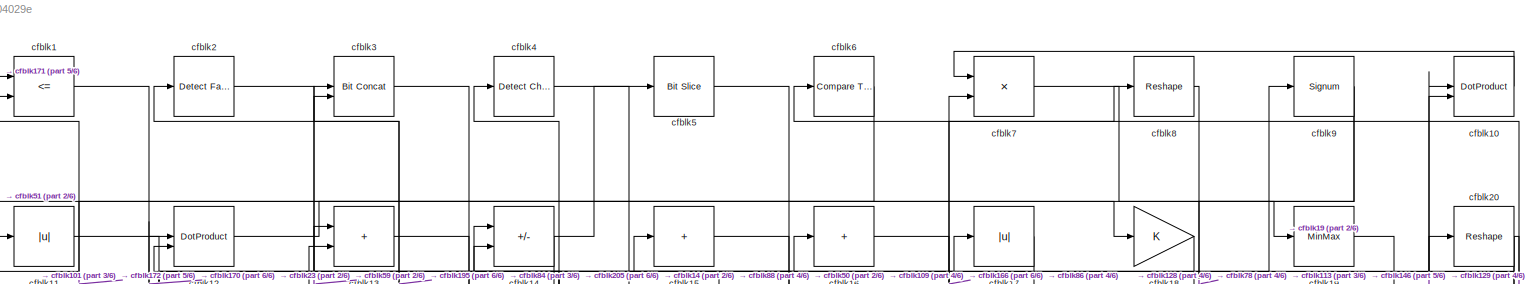
[diagram: root canvas - part 1/6, full width, top band]
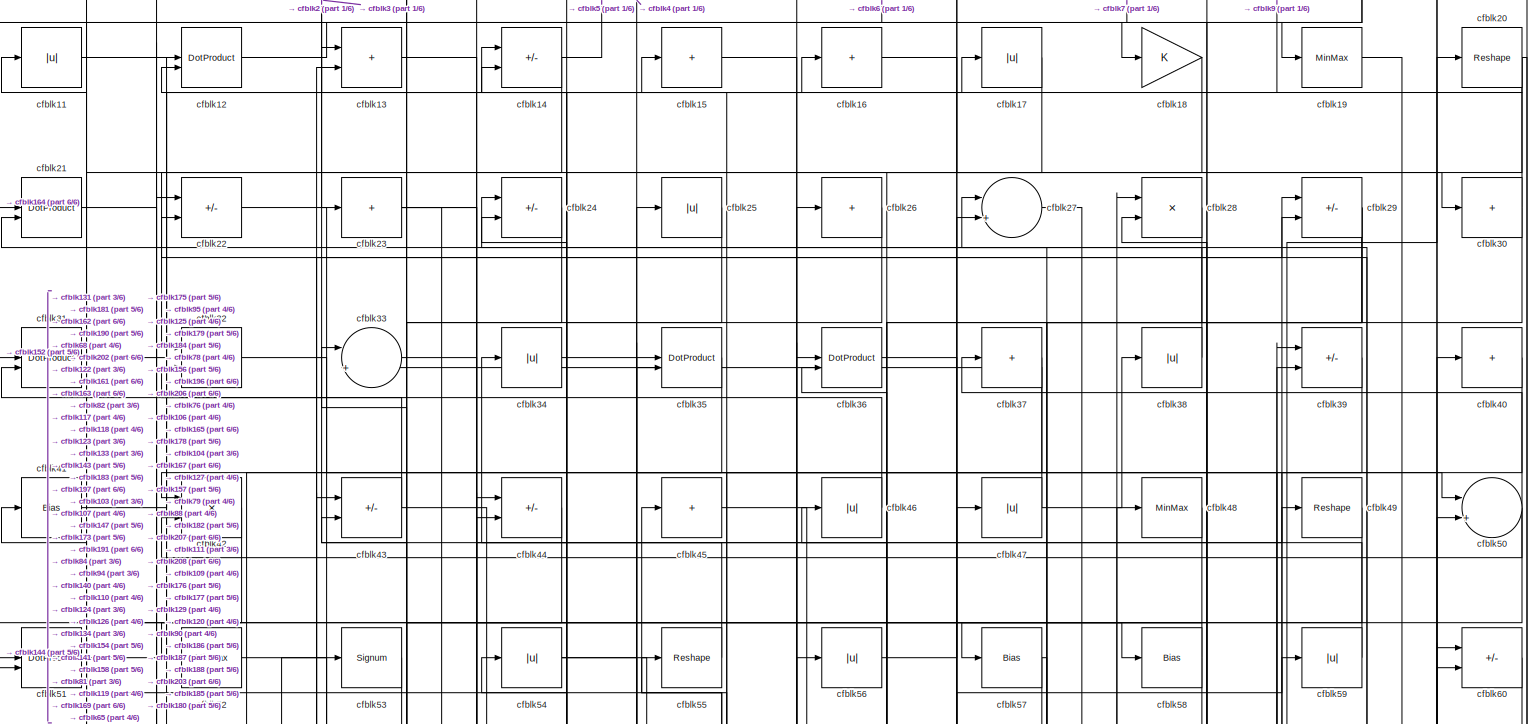
[diagram: root canvas - part 2/6, full width, top band]
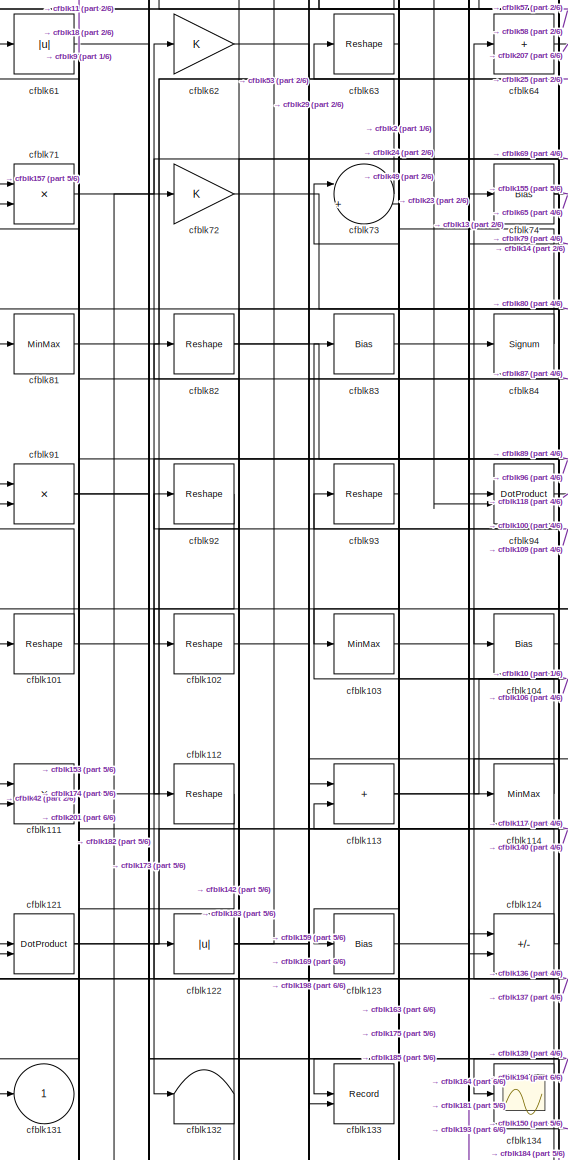
[diagram: root canvas - part 3/6, middle left region]
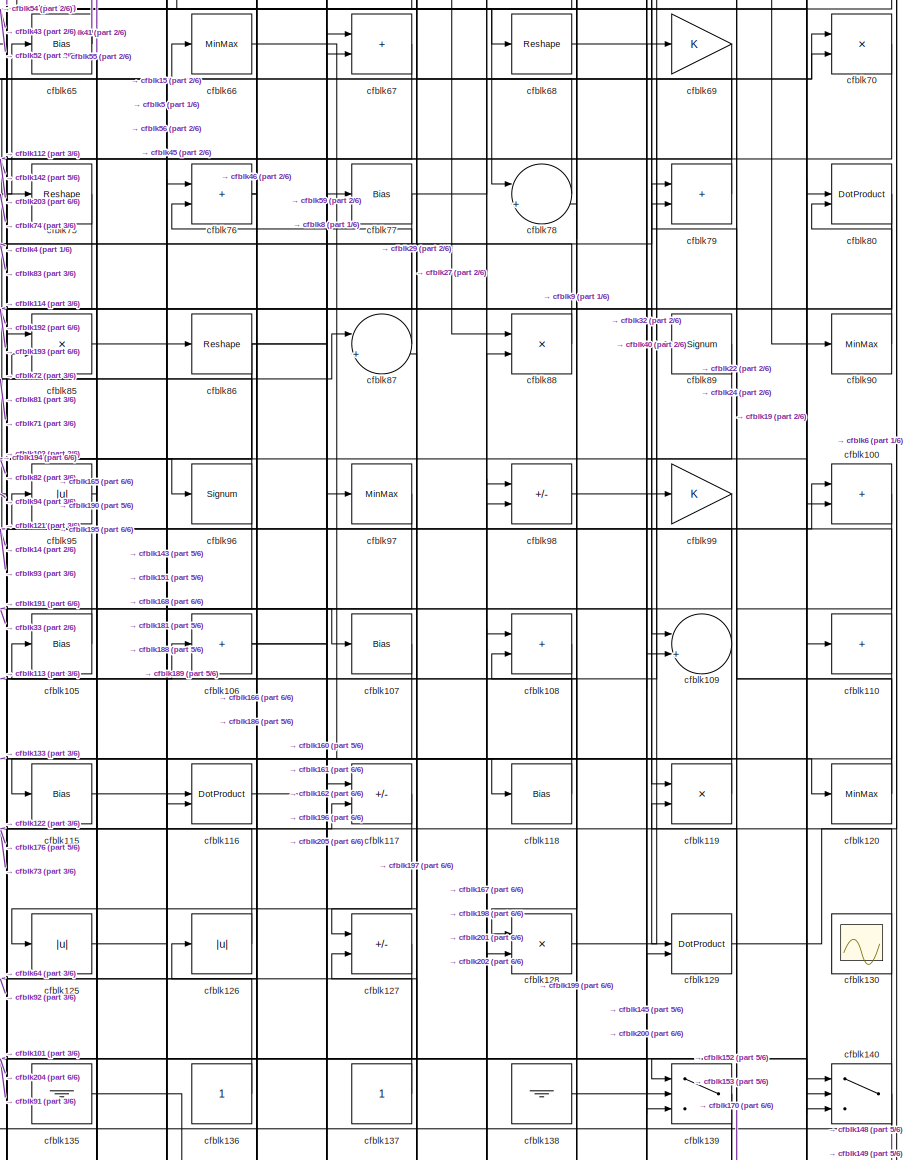
[diagram: root canvas - part 4/6, middle right region]
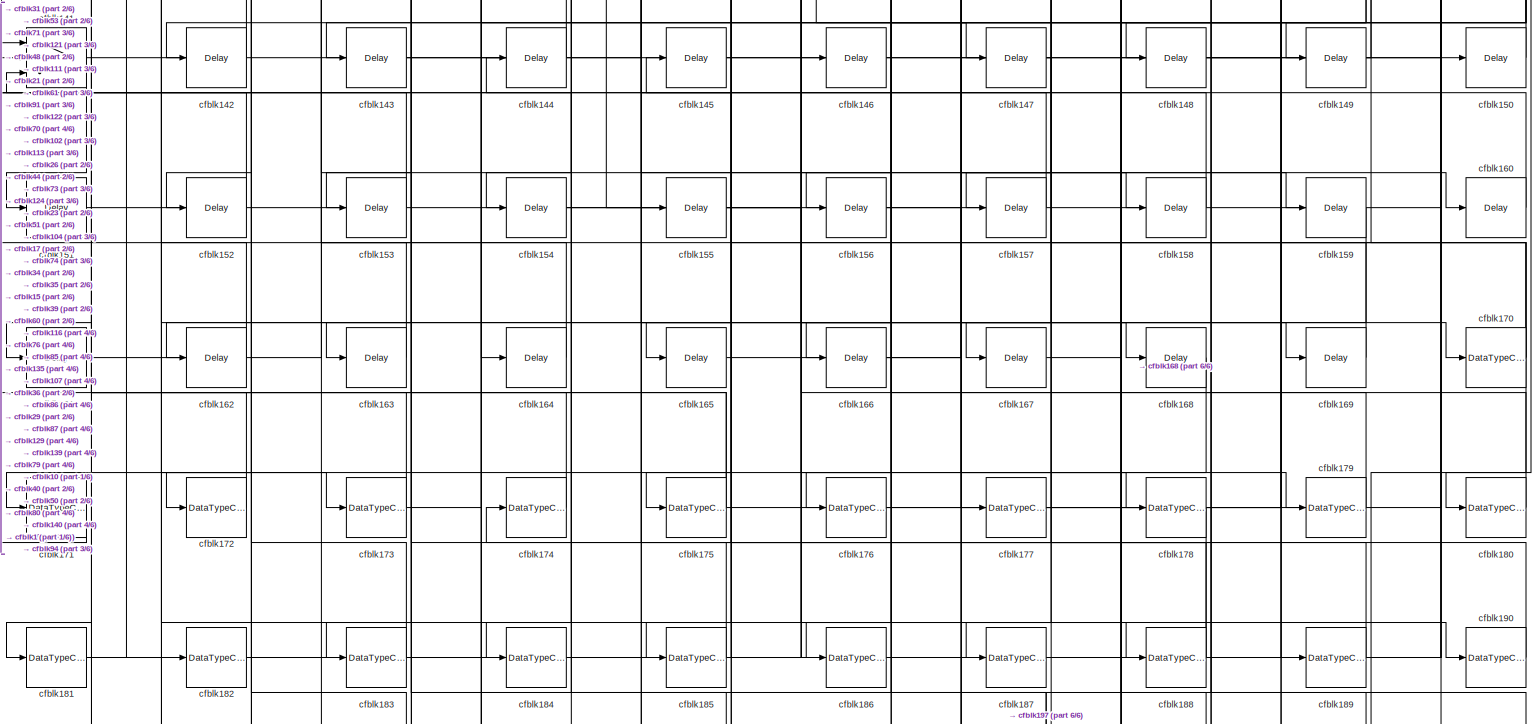
[diagram: root canvas - part 5/6, full width, bottom band]
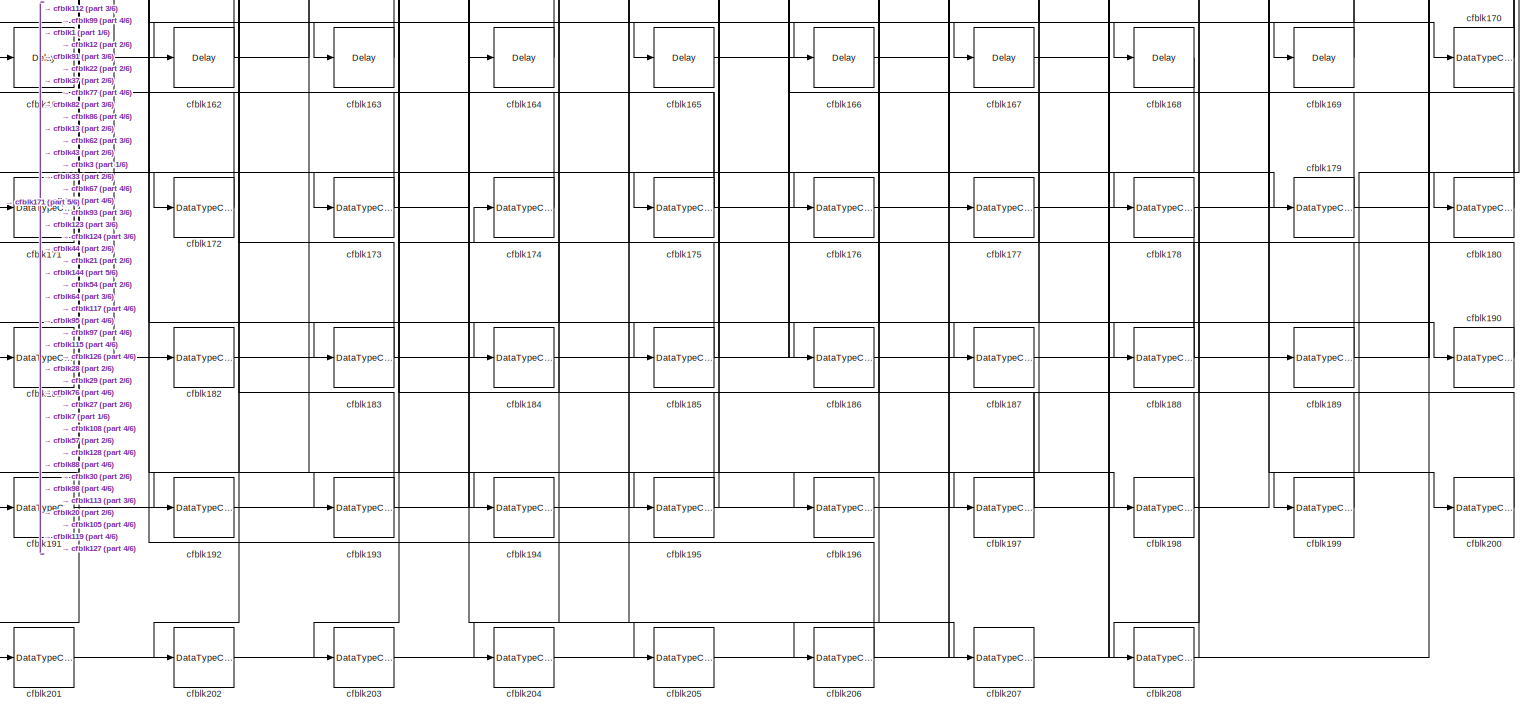
[diagram: root canvas - part 6/6, full width, bottom band]
MODEL slx_b9c38904029e
KIND model
CONFIG AbsTol = auto
CONFIG EnableMultiTasking = off
CONFIG FixedStep = auto
CONFIG MaxStep = auto
CONFIG MinStep = auto
CONFIG RelTol = 1e-3
CONFIG SampleTimeConstraint = Unconstrained
CONFIG SolverName = VariableStepAuto
CONFIG StartTime = 0.0
CONFIG StopTime = 10.0
BLOCK [RelationalOperator] cfblk1
  InputSameDT = off
  Operator = <=
  OutDataTypeStr = boolean
BLOCK [DotProduct] cfblk10
  OutDataTypeStr = Inherit: Inherit via internal rule
BLOCK [Sum] cfblk100
  IconShape = rectangular
BLOCK [Reshape] cfblk101
BLOCK [Reshape] cfblk102
BLOCK [MinMax] cfblk103
BLOCK [Bias] cfblk104
  Bias = 0.0
  SaturateOnIntegerOverflow = off
BLOCK [Bias] cfblk105
  Bias = 0.0
  SaturateOnIntegerOverflow = off
BLOCK [Sum] cfblk106
  IconShape = rectangular
  Inputs = +
BLOCK [Bias] cfblk107
  Bias = 0.0
  SaturateOnIntegerOverflow = off
BLOCK [Sum] cfblk108
  IconShape = rectangular
BLOCK [Sum] cfblk109
  Inputs = |++
BLOCK [Abs] cfblk11
  SaturateOnIntegerOverflow = off
BLOCK [Sum] cfblk110
  IconShape = rectangular
  Inputs = +
BLOCK [Product] cfblk111
  Inputs = */
  RndMeth = Zero
  SaturateOnIntegerOverflow = on
BLOCK [Reshape] cfblk112
BLOCK [Sum] cfblk113
  IconShape = rectangular
BLOCK [MinMax] cfblk114
BLOCK [Bias] cfblk115
  Bias = 0.0
  SaturateOnIntegerOverflow = off
BLOCK [DotProduct] cfblk116
  OutDataTypeStr = Inherit: Inherit via internal rule
BLOCK [Sum] cfblk117
  IconShape = rectangular
  Inputs = +-
BLOCK [Bias] cfblk118
  Bias = 0.0
  SaturateOnIntegerOverflow = off
BLOCK [Product] cfblk119
  Inputs = */
  RndMeth = Zero
  SaturateOnIntegerOverflow = on
BLOCK [DotProduct] cfblk12
  OutDataTypeStr = Inherit: Inherit via internal rule
BLOCK [MinMax] cfblk120
BLOCK [DotProduct] cfblk121
  OutDataTypeStr = Inherit: Inherit via internal rule
BLOCK [Abs] cfblk122
  SaturateOnIntegerOverflow = off
BLOCK [Bias] cfblk123
  Bias = 0.0
  SaturateOnIntegerOverflow = off
BLOCK [Sum] cfblk124
  IconShape = rectangular
  Inputs = +-
BLOCK [Abs] cfblk125
  SaturateOnIntegerOverflow = off
BLOCK [Abs] cfblk126
  SaturateOnIntegerOverflow = off
BLOCK [Sum] cfblk127
  IconShape = rectangular
  Inputs = +-
BLOCK [Product] cfblk128
  Inputs = */
  RndMeth = Zero
  SaturateOnIntegerOverflow = on
BLOCK [DotProduct] cfblk129
  OutDataTypeStr = Inherit: Inherit via internal rule
BLOCK [Sum] cfblk13
  IconShape = rectangular
BLOCK [Scope] cfblk130
  Floating = on
  NumInputPorts = 1
  ScopeSpecificationString = Simulink.scopes.TimeScopeBlockCfg('CurrentConfiguration', extmgr.ConfigurationSet(extmgr.Configuration('Core','General UI',true,'FigureColor',[0.156862745098039 0.156862745098039 0.156862745098039]),extmgr.Configuration('Core','Source UI',true),extmgr.Configuration('Sources','WiredSimulink',true,'DataLoggingVariableName','ScopeData1','DataLoggingSaveFormat','StructureWithTime','DataLoggingLimitDat...<+2713ch>
BLOCK [Outport] cfblk131
  VectorParamsAs1DForOutWhenUnconnected = off
BLOCK [Terminator] cfblk132
BLOCK [Record] cfblk133
  CompatibilityTag = XY
  FileSettingsInternal = {"entries":[{"content":{"excelSettings":{"content":{},"type":"Streamout.ExcelSettings"}},"type":"Streamout.FileSettingStorage","uuid":""}],"packageUris":["http:\/\/schema.mathworks.com\/mf0\/streamout_blocks\/R2020a"],"version":"1.0"}
  Layout = [1 1]
  SignalsInternal = {"entries":[{"content":{"signals":[{"content":{"blockPath":[],"dimensions":[1],"domain":"","lineColor":"#a2142f","plots":[1],"port":1,"signalID":1555,"signalName":"XY Graph:1"},"type":"RecordBlkView.Signal","uuid":""},{"content":{"blockPath":[],"dimensions":[1],"domain":"","lineColor":"#139fff","plots":[1],"port":2,"signalID":1558,"signalName":"XY Graph:2"},"type":"RecordBlkView.Signal","uuid":""}...<+146ch>
  VisualizationBindings = {"xyplotplugin":{"info":[{"series":[{"bindingParametersList":[{"parameter":"X-Axis","signalID":1555,"signalName":"XY Graph:1"},{"parameter":"Y-Axis","signalID":1558,"signalName":"XY Graph:2"}],"seriesID":30679}],"subplotID":1}]}}
  st = -1
BLOCK [Scope] cfblk134
  Floating = off
  NumInputPorts = 1
  ScopeSpecificationString = Simulink.scopes.TimeScopeBlockCfg('CurrentConfiguration', extmgr.ConfigurationSet(extmgr.Configuration('Core','General UI',true),extmgr.Configuration('Core','Source UI',true),extmgr.Configuration('Sources','WiredSimulink',true,'DataLoggingVariableName','ScopeData2','DataLoggingSaveFormat','Array','DataLoggingLimitDataPoints',true,'DataLoggingDecimation','1'),extmgr.Configuration('Visuals','Time Do...<+868ch>
BLOCK [Ground] cfblk135
BLOCK [Constant] cfblk136
  SampleTime = -1
BLOCK [Constant] cfblk137
  SampleTime = -1
BLOCK [Ground] cfblk138
BLOCK [Switch] cfblk139
  InputSameDT = off
  SaturateOnIntegerOverflow = off
BLOCK [Sum] cfblk14
  IconShape = rectangular
  Inputs = +-
BLOCK [Switch] cfblk140
  InputSameDT = off
  SaturateOnIntegerOverflow = off
BLOCK [Switch] cfblk141
  InputSameDT = off
  SaturateOnIntegerOverflow = off
BLOCK [Delay] cfblk142
  InputPortMap = u0
  SampleTime = 1
BLOCK [Delay] cfblk143
  InputPortMap = u0
  SampleTime = 1
BLOCK [Delay] cfblk144
  InputPortMap = u0
  SampleTime = 1
BLOCK [Delay] cfblk145
  InputPortMap = u0
  SampleTime = 1
BLOCK [Delay] cfblk146
  InputPortMap = u0
  SampleTime = 1
BLOCK [Delay] cfblk147
  InputPortMap = u0
  SampleTime = 1
BLOCK [Delay] cfblk148
  InputPortMap = u0
  SampleTime = 1
BLOCK [Delay] cfblk149
  InputPortMap = u0
  SampleTime = 1
BLOCK [Sum] cfblk15
  IconShape = rectangular
  Inputs = +
BLOCK [Delay] cfblk150
  InputPortMap = u0
  SampleTime = 1
BLOCK [Delay] cfblk151
  InputPortMap = u0
  SampleTime = 1
BLOCK [Delay] cfblk152
  InputPortMap = u0
  SampleTime = 1
BLOCK [Delay] cfblk153
  InputPortMap = u0
  SampleTime = 1
BLOCK [Delay] cfblk154
  InputPortMap = u0
  SampleTime = 1
BLOCK [Delay] cfblk155
  InputPortMap = u0
  SampleTime = 1
BLOCK [Delay] cfblk156
  InputPortMap = u0
  SampleTime = 1
BLOCK [Delay] cfblk157
  InputPortMap = u0
  SampleTime = 1
BLOCK [Delay] cfblk158
  InputPortMap = u0
  SampleTime = 1
BLOCK [Delay] cfblk159
  InputPortMap = u0
  SampleTime = 1
BLOCK [Sum] cfblk16
  IconShape = rectangular
  Inputs = +
BLOCK [Delay] cfblk160
  InputPortMap = u0
  SampleTime = 1
BLOCK [Delay] cfblk161
  InputPortMap = u0
  SampleTime = 1
BLOCK [Delay] cfblk162
  InputPortMap = u0
  SampleTime = 1
BLOCK [Delay] cfblk163
  InputPortMap = u0
  SampleTime = 1
BLOCK [Delay] cfblk164
  InputPortMap = u0
  SampleTime = 1
BLOCK [Delay] cfblk165
  InputPortMap = u0
  SampleTime = 1
BLOCK [Delay] cfblk166
  InputPortMap = u0
  SampleTime = 1
BLOCK [Delay] cfblk167
  InputPortMap = u0
  SampleTime = 1
BLOCK [Delay] cfblk168
  InputPortMap = u0
  SampleTime = 1
BLOCK [Delay] cfblk169
  InputPortMap = u0
  SampleTime = 1
BLOCK [Abs] cfblk17
  SaturateOnIntegerOverflow = off
BLOCK [DataTypeConversion] cfblk170
  RndMeth = Floor
  SaturateOnIntegerOverflow = off
BLOCK [DataTypeConversion] cfblk171
  OutDataTypeStr = uint8
  RndMeth = Floor
  SaturateOnIntegerOverflow = off
BLOCK [DataTypeConversion] cfblk172
  OutDataTypeStr = uint8
  RndMeth = Floor
  SaturateOnIntegerOverflow = off
BLOCK [DataTypeConversion] cfblk173
  RndMeth = Floor
  SaturateOnIntegerOverflow = off
BLOCK [DataTypeConversion] cfblk174
  OutDataTypeStr = uint8
  RndMeth = Floor
  SaturateOnIntegerOverflow = off
BLOCK [DataTypeConversion] cfblk175
  RndMeth = Floor
  SaturateOnIntegerOverflow = off
BLOCK [DataTypeConversion] cfblk176
  OutDataTypeStr = uint8
  RndMeth = Floor
  SaturateOnIntegerOverflow = off
BLOCK [DataTypeConversion] cfblk177
  OutDataTypeStr = uint8
  RndMeth = Floor
  SaturateOnIntegerOverflow = off
BLOCK [DataTypeConversion] cfblk178
  OutDataTypeStr = uint8
  RndMeth = Floor
  SaturateOnIntegerOverflow = off
BLOCK [DataTypeConversion] cfblk179
  OutDataTypeStr = uint8
  RndMeth = Floor
  SaturateOnIntegerOverflow = off
BLOCK [Gain] cfblk18
BLOCK [DataTypeConversion] cfblk180
  OutDataTypeStr = uint8
  RndMeth = Floor
  SaturateOnIntegerOverflow = off
BLOCK [DataTypeConversion] cfblk181
  RndMeth = Floor
  SaturateOnIntegerOverflow = off
BLOCK [DataTypeConversion] cfblk182
  OutDataTypeStr = uint8
  RndMeth = Floor
  SaturateOnIntegerOverflow = off
BLOCK [DataTypeConversion] cfblk183
  RndMeth = Floor
  SaturateOnIntegerOverflow = off
BLOCK [DataTypeConversion] cfblk184
  OutDataTypeStr = uint8
  RndMeth = Floor
  SaturateOnIntegerOverflow = off
BLOCK [DataTypeConversion] cfblk185
  RndMeth = Floor
  SaturateOnIntegerOverflow = off
BLOCK [DataTypeConversion] cfblk186
  OutDataTypeStr = uint8
  RndMeth = Floor
  SaturateOnIntegerOverflow = off
BLOCK [DataTypeConversion] cfblk187
  OutDataTypeStr = uint8
  RndMeth = Floor
  SaturateOnIntegerOverflow = off
BLOCK [DataTypeConversion] cfblk188
  RndMeth = Floor
  SaturateOnIntegerOverflow = off
BLOCK [DataTypeConversion] cfblk189
  OutDataTypeStr = uint8
  RndMeth = Floor
  SaturateOnIntegerOverflow = off
BLOCK [MinMax] cfblk19
BLOCK [DataTypeConversion] cfblk190
  OutDataTypeStr = uint8
  RndMeth = Floor
  SaturateOnIntegerOverflow = off
BLOCK [DataTypeConversion] cfblk191
  OutDataTypeStr = uint8
  RndMeth = Floor
  SaturateOnIntegerOverflow = off
BLOCK [DataTypeConversion] cfblk192
  OutDataTypeStr = uint8
  RndMeth = Floor
  SaturateOnIntegerOverflow = off
BLOCK [DataTypeConversion] cfblk193
  RndMeth = Floor
  SaturateOnIntegerOverflow = off
BLOCK [DataTypeConversion] cfblk194
  OutDataTypeStr = uint8
  RndMeth = Floor
  SaturateOnIntegerOverflow = off
BLOCK [DataTypeConversion] cfblk195
  RndMeth = Floor
  SaturateOnIntegerOverflow = off
BLOCK [DataTypeConversion] cfblk196
  OutDataTypeStr = uint8
  RndMeth = Floor
  SaturateOnIntegerOverflow = off
BLOCK [DataTypeConversion] cfblk197
  RndMeth = Floor
  SaturateOnIntegerOverflow = off
BLOCK [DataTypeConversion] cfblk198
  OutDataTypeStr = uint8
  RndMeth = Floor
  SaturateOnIntegerOverflow = off
BLOCK [DataTypeConversion] cfblk199
  OutDataTypeStr = uint8
  RndMeth = Floor
  SaturateOnIntegerOverflow = off
BLOCK [Reference] cfblk2  REF=hdlsllib/Logic and Bit
Operations/Detect Fall
Nonpositive
  SourceBlock = hdlsllib/Logic and Bit\nOperations/Detect Fall\nNonpositive
  SourceType = Detect Fall Nonpositive
BLOCK [Reshape] cfblk20
BLOCK [DataTypeConversion] cfblk200
  OutDataTypeStr = uint8
  RndMeth = Floor
  SaturateOnIntegerOverflow = off
BLOCK [DataTypeConversion] cfblk201
  OutDataTypeStr = uint8
  RndMeth = Floor
  SaturateOnIntegerOverflow = off
BLOCK [DataTypeConversion] cfblk202
  OutDataTypeStr = uint8
  RndMeth = Floor
  SaturateOnIntegerOverflow = off
BLOCK [DataTypeConversion] cfblk203
  OutDataTypeStr = uint8
  RndMeth = Floor
  SaturateOnIntegerOverflow = off
BLOCK [DataTypeConversion] cfblk204
  OutDataTypeStr = uint8
  RndMeth = Floor
  SaturateOnIntegerOverflow = off
BLOCK [DataTypeConversion] cfblk205
  OutDataTypeStr = uint8
  RndMeth = Floor
  SaturateOnIntegerOverflow = off
BLOCK [DataTypeConversion] cfblk206
  OutDataTypeStr = uint8
  RndMeth = Floor
  SaturateOnIntegerOverflow = off
BLOCK [DataTypeConversion] cfblk207
  OutDataTypeStr = uint8
  RndMeth = Floor
  SaturateOnIntegerOverflow = off
BLOCK [DataTypeConversion] cfblk208
  OutDataTypeStr = uint8
  RndMeth = Floor
  SaturateOnIntegerOverflow = off
BLOCK [DotProduct] cfblk21
  OutDataTypeStr = Inherit: Inherit via internal rule
BLOCK [Sum] cfblk22
  IconShape = rectangular
  Inputs = +-
BLOCK [Sum] cfblk23
  IconShape = rectangular
  Inputs = +
BLOCK [Sum] cfblk24
  IconShape = rectangular
  Inputs = +-
BLOCK [Abs] cfblk25
  SaturateOnIntegerOverflow = off
BLOCK [Sum] cfblk26
  IconShape = rectangular
  Inputs = +
BLOCK [Sum] cfblk27
  Inputs = |++
BLOCK [Product] cfblk28
  Inputs = */
  RndMeth = Zero
  SaturateOnIntegerOverflow = on
BLOCK [Sum] cfblk29
  IconShape = rectangular
  Inputs = +-
BLOCK [Reference] cfblk3  REF=hdlsllib/Logic and Bit
Operations/Bit Concat
  SourceBlock = hdlsllib/Logic and Bit\nOperations/Bit Concat
  SourceType = Bit Concat
BLOCK [Sum] cfblk30
  IconShape = rectangular
  Inputs = +
BLOCK [DotProduct] cfblk31
  OutDataTypeStr = Inherit: Inherit via internal rule
BLOCK [Product] cfblk32
  Inputs = */
  RndMeth = Zero
  SaturateOnIntegerOverflow = on
BLOCK [Sum] cfblk33
  Inputs = |++
BLOCK [Abs] cfblk34
  SaturateOnIntegerOverflow = off
BLOCK [DotProduct] cfblk35
  OutDataTypeStr = Inherit: Inherit via internal rule
BLOCK [DotProduct] cfblk36
  OutDataTypeStr = Inherit: Inherit via internal rule
BLOCK [Sum] cfblk37
  IconShape = rectangular
  Inputs = +
BLOCK [Abs] cfblk38
  SaturateOnIntegerOverflow = off
BLOCK [Sum] cfblk39
  IconShape = rectangular
  Inputs = +-
BLOCK [Reference] cfblk4  REF=simulink/Logic and Bit
Operations/Detect
Change
  LibrarySourceBlock = hdlsllib/Logic and Bit\nOperations/Detect\nChange
  SourceBlock = simulink/Logic and Bit\nOperations/Detect\nChange
  SourceType = Detect Change
BLOCK [Sum] cfblk40
  IconShape = rectangular
  Inputs = +
BLOCK [Bias] cfblk41
  Bias = 0.0
  SaturateOnIntegerOverflow = off
BLOCK [Product] cfblk42
  Inputs = */
  RndMeth = Zero
  SaturateOnIntegerOverflow = on
BLOCK [Sum] cfblk43
  IconShape = rectangular
  Inputs = +-
BLOCK [Sum] cfblk44
  IconShape = rectangular
  Inputs = +-
BLOCK [Sum] cfblk45
  IconShape = rectangular
  Inputs = +
BLOCK [Abs] cfblk46
  SaturateOnIntegerOverflow = off
BLOCK [Abs] cfblk47
  SaturateOnIntegerOverflow = off
BLOCK [MinMax] cfblk48
BLOCK [Reshape] cfblk49
BLOCK [Reference] cfblk5  REF=hdlsllib/Logic and Bit
Operations/Bit Slice
  SourceBlock = hdlsllib/Logic and Bit\nOperations/Bit Slice
  SourceType = Bit Slice
BLOCK [Sum] cfblk50
  Inputs = |++
BLOCK [DotProduct] cfblk51
  OutDataTypeStr = Inherit: Inherit via internal rule
BLOCK [MinMax] cfblk52
BLOCK [Signum] cfblk53
BLOCK [Abs] cfblk54
  SaturateOnIntegerOverflow = off
BLOCK [Reshape] cfblk55
BLOCK [Abs] cfblk56
  SaturateOnIntegerOverflow = off
BLOCK [Bias] cfblk57
  Bias = 0.0
  SaturateOnIntegerOverflow = off
BLOCK [Bias] cfblk58
  Bias = 0.0
  SaturateOnIntegerOverflow = off
BLOCK [Abs] cfblk59
  SaturateOnIntegerOverflow = off
BLOCK [Reference] cfblk6  REF=hdlsllib/Logic and Bit
Operations/Compare
To Constant
  SourceBlock = hdlsllib/Logic and Bit\nOperations/Compare\nTo Constant
  SourceType = Compare To Constant
BLOCK [Sum] cfblk60
  IconShape = rectangular
  Inputs = +-
BLOCK [Abs] cfblk61
  SaturateOnIntegerOverflow = off
BLOCK [Gain] cfblk62
BLOCK [Reshape] cfblk63
BLOCK [Sum] cfblk64
  IconShape = rectangular
  Inputs = +
BLOCK [Bias] cfblk65
  Bias = 0.0
  SaturateOnIntegerOverflow = off
BLOCK [MinMax] cfblk66
BLOCK [Sum] cfblk67
  IconShape = rectangular
BLOCK [Reshape] cfblk68
BLOCK [Gain] cfblk69
BLOCK [Product] cfblk7
  Inputs = */
  RndMeth = Zero
  SaturateOnIntegerOverflow = on
BLOCK [Product] cfblk70
  Inputs = */
  RndMeth = Zero
  SaturateOnIntegerOverflow = on
BLOCK [Product] cfblk71
  Inputs = */
  RndMeth = Zero
  SaturateOnIntegerOverflow = on
BLOCK [Gain] cfblk72
BLOCK [Sum] cfblk73
  Inputs = |++
BLOCK [Bias] cfblk74
  Bias = 0.0
  SaturateOnIntegerOverflow = off
BLOCK [Reshape] cfblk75
BLOCK [Sum] cfblk76
  IconShape = rectangular
BLOCK [Bias] cfblk77
  Bias = 0.0
  SaturateOnIntegerOverflow = off
BLOCK [Sum] cfblk78
  Inputs = |++
BLOCK [Sum] cfblk79
  IconShape = rectangular
BLOCK [Reshape] cfblk8
BLOCK [DotProduct] cfblk80
  OutDataTypeStr = Inherit: Inherit via internal rule
BLOCK [MinMax] cfblk81
BLOCK [Reshape] cfblk82
BLOCK [Bias] cfblk83
  Bias = 0.0
  SaturateOnIntegerOverflow = off
BLOCK [Signum] cfblk84
BLOCK [Product] cfblk85
  Inputs = */
  RndMeth = Zero
  SaturateOnIntegerOverflow = on
BLOCK [Reshape] cfblk86
BLOCK [Sum] cfblk87
  Inputs = |++
BLOCK [Product] cfblk88
  Inputs = */
  RndMeth = Zero
  SaturateOnIntegerOverflow = on
BLOCK [Signum] cfblk89
BLOCK [Signum] cfblk9
BLOCK [MinMax] cfblk90
BLOCK [Product] cfblk91
  Inputs = */
  RndMeth = Zero
  SaturateOnIntegerOverflow = on
BLOCK [Reshape] cfblk92
BLOCK [Reshape] cfblk93
BLOCK [DotProduct] cfblk94
  OutDataTypeStr = Inherit: Inherit via internal rule
BLOCK [Abs] cfblk95
  SaturateOnIntegerOverflow = off
BLOCK [Signum] cfblk96
BLOCK [MinMax] cfblk97
BLOCK [Sum] cfblk98
  IconShape = rectangular
  Inputs = +-
BLOCK [Gain] cfblk99
LINE cfblk100:1 -> cfblk139:1
NET cfblk101:1 -> cfblk139:3, cfblk91:2
LINE cfblk102:1 -> cfblk159:1
LINE cfblk103:1 -> cfblk49:1
LINE cfblk104:1 -> cfblk184:1
LINE cfblk105:1 -> cfblk66:1
NET cfblk106:1 -> cfblk140:3, cfblk59:1
LINE cfblk107:1 -> cfblk186:1
LINE cfblk108:1 -> cfblk197:1
NET cfblk109:1 -> cfblk133:2, cfblk93:1
LINE cfblk10:1 -> cfblk7:1
NET cfblk110:1 -> cfblk125:1, cfblk14:1
NET cfblk111:1 -> cfblk182:1, cfblk29:1, cfblk72:1
LINE cfblk112:1 -> cfblk201:1
NET cfblk113:1 -> cfblk106:1, cfblk10:2
LINE cfblk114:1 -> cfblk83:1
LINE cfblk115:1 -> cfblk168:1
LINE cfblk116:1 -> cfblk77:1
LINE cfblk117:1 -> cfblk165:1
LINE cfblk118:1 -> cfblk43:2
LINE cfblk119:1 -> cfblk115:1
LINE cfblk11:1 -> cfblk68:1
NET cfblk120:1 -> cfblk22:2, cfblk24:1
NET cfblk121:1 -> cfblk100:1, cfblk74:1
NET cfblk122:1 -> cfblk117:2, cfblk53:1, cfblk87:1
LINE cfblk123:1 -> cfblk164:1
NET cfblk124:1 -> cfblk11:1, cfblk14:2
LINE cfblk125:1 -> cfblk56:1
LINE cfblk126:1 -> cfblk54:1
LINE cfblk127:1 -> cfblk204:1
LINE cfblk128:1 -> cfblk70:1
LINE cfblk129:1 -> cfblk6:1
LINE cfblk12:1 -> cfblk18:1
LINE cfblk135:1 -> cfblk189:1
LINE cfblk136:1 -> cfblk64:1
LINE cfblk137:1 -> cfblk92:1
LINE cfblk138:1 -> cfblk69:1
NET cfblk139:1 -> cfblk152:1, cfblk153:1
LINE cfblk13:1 -> cfblk84:1
NET cfblk140:1 -> cfblk148:1, cfblk149:1, cfblk176:1, cfblk73:2
NET cfblk141:1 -> cfblk151:1, cfblk35:2
LINE cfblk142:1 -> cfblk91:1
LINE cfblk143:1 -> cfblk116:1
LINE cfblk144:1 -> cfblk51:1
LINE cfblk145:1 -> cfblk129:2
LINE cfblk146:1 -> cfblk10:1
LINE cfblk147:1 -> cfblk187:1
LINE cfblk148:1 -> cfblk80:1
LINE cfblk149:1 -> cfblk79:2
NET cfblk14:1 -> cfblk32:1, cfblk5:1
LINE cfblk150:1 -> cfblk94:1
LINE cfblk151:1 -> cfblk76:1
LINE cfblk152:1 -> cfblk31:1
LINE cfblk153:1 -> cfblk121:2
LINE cfblk154:1 -> cfblk50:2
LINE cfblk155:1 -> cfblk179:1
LINE cfblk156:1 -> cfblk177:1
LINE cfblk157:1 -> cfblk71:1
LINE cfblk158:1 -> cfblk35:1
LINE cfblk159:1 -> cfblk172:1
LINE cfblk15:1 -> cfblk140:2
LINE cfblk160:1 -> cfblk141:1
LINE cfblk161:1 -> cfblk13:2
LINE cfblk162:1 -> cfblk22:1
LINE cfblk163:1 -> cfblk43:1
LINE cfblk164:1 -> cfblk21:1
LINE cfblk165:1 -> cfblk27:2
LINE cfblk166:1 -> cfblk7:2
LINE cfblk167:1 -> cfblk88:2
LINE cfblk168:1 -> cfblk171:1
LINE cfblk169:1 -> cfblk113:1
LINE cfblk16:1 -> cfblk30:1
NET cfblk170:1 -> cfblk105:1, cfblk119:2, cfblk127:2, cfblk199:1
LINE cfblk171:1 -> cfblk1:1
LINE cfblk172:1 -> cfblk1:2
NET cfblk173:1 -> cfblk121:1, cfblk44:2
LINE cfblk174:1 -> cfblk61:1
NET cfblk175:1 -> cfblk141:3, cfblk150:1, cfblk73:1
LINE cfblk176:1 -> cfblk39:1
LINE cfblk177:1 -> cfblk39:2
LINE cfblk178:1 -> cfblk174:1
LINE cfblk179:1 -> cfblk36:1
LINE cfblk17:1 -> cfblk154:1
LINE cfblk180:1 -> cfblk36:2
NET cfblk181:1 -> cfblk124:1, cfblk86:1
LINE cfblk182:1 -> cfblk48:1
NET cfblk183:1 -> cfblk122:1, cfblk146:1
LINE cfblk184:1 -> cfblk26:1
NET cfblk185:1 -> cfblk113:2, cfblk145:1
LINE cfblk186:1 -> cfblk60:1
LINE cfblk187:1 -> cfblk60:2
NET cfblk188:1 -> cfblk15:1, cfblk40:1, cfblk87:2
LINE cfblk189:1 -> cfblk85:1
LINE cfblk18:1 -> cfblk131:1
LINE cfblk190:1 -> cfblk85:2
LINE cfblk191:1 -> cfblk44:1
LINE cfblk192:1 -> cfblk99:1
NET cfblk193:1 -> cfblk124:2, cfblk82:1
LINE cfblk194:1 -> cfblk75:1
NET cfblk195:1 -> cfblk128:2, cfblk3:2, cfblk95:1
LINE cfblk196:1 -> cfblk97:1
NET cfblk197:1 -> cfblk144:1, cfblk33:1
LINE cfblk198:1 -> cfblk108:1
LINE cfblk199:1 -> cfblk108:2
LINE cfblk19:1 -> cfblk90:1
LINE cfblk1:1 -> cfblk170:1
LINE cfblk200:1 -> cfblk126:1
LINE cfblk201:1 -> cfblk98:1
LINE cfblk202:1 -> cfblk98:2
LINE cfblk203:1 -> cfblk20:1
LINE cfblk204:1 -> cfblk67:1
LINE cfblk205:1 -> cfblk67:2
LINE cfblk206:1 -> cfblk12:1
LINE cfblk207:1 -> cfblk28:1
LINE cfblk208:1 -> cfblk28:2
NET cfblk20:1 -> cfblk12:2, cfblk156:1, cfblk180:1
LINE cfblk21:1 -> cfblk190:1
LINE cfblk22:1 -> cfblk110:1
NET cfblk23:1 -> cfblk147:1, cfblk58:1, cfblk94:2
LINE cfblk24:1 -> cfblk133:1
LINE cfblk25:1 -> cfblk134:1
LINE cfblk26:1 -> cfblk183:1
LINE cfblk27:1 -> cfblk88:1
LINE cfblk28:1 -> cfblk206:1
NET cfblk29:1 -> cfblk127:1, cfblk157:1, cfblk196:1
LINE cfblk2:1 -> cfblk23:1
NET cfblk30:1 -> cfblk13:1, cfblk208:1
LINE cfblk31:1 -> cfblk16:1
LINE cfblk32:1 -> cfblk109:2
LINE cfblk33:1 -> cfblk107:1
LINE cfblk34:1 -> cfblk158:1
LINE cfblk35:1 -> cfblk42:1
LINE cfblk36:1 -> cfblk178:1
LINE cfblk37:1 -> cfblk202:1
LINE cfblk38:1 -> cfblk21:2
LINE cfblk39:1 -> cfblk175:1
LINE cfblk3:1 -> cfblk205:1
LINE cfblk40:1 -> cfblk129:1
LINE cfblk41:1 -> cfblk17:1
LINE cfblk42:1 -> cfblk111:2
NET cfblk43:1 -> cfblk140:1, cfblk32:2
LINE cfblk44:1 -> cfblk143:1
LINE cfblk45:1 -> cfblk78:1
LINE cfblk46:1 -> cfblk31:2
NET cfblk47:1 -> cfblk33:2, cfblk38:1
LINE cfblk48:1 -> cfblk181:1
LINE cfblk49:1 -> cfblk123:1
LINE cfblk4:1 -> cfblk50:1
NET cfblk50:1 -> cfblk37:1, cfblk42:2, cfblk57:1
LINE cfblk51:1 -> cfblk9:1
LINE cfblk52:1 -> cfblk117:1
LINE cfblk53:1 -> cfblk141:2
NET cfblk54:1 -> cfblk119:1, cfblk169:1
LINE cfblk55:1 -> cfblk34:1
LINE cfblk56:1 -> cfblk47:1
NET cfblk57:1 -> cfblk104:1, cfblk167:1
NET cfblk58:1 -> cfblk111:1, cfblk52:1
LINE cfblk59:1 -> cfblk3:1
LINE cfblk5:1 -> cfblk109:1
LINE cfblk60:1 -> cfblk185:1
LINE cfblk61:1 -> cfblk173:1
LINE cfblk62:1 -> cfblk198:1
LINE cfblk63:1 -> cfblk103:1
LINE cfblk64:1 -> cfblk207:1
NET cfblk65:1 -> cfblk41:1, cfblk45:1
LINE cfblk66:1 -> cfblk120:1
LINE cfblk67:1 -> cfblk203:1
LINE cfblk68:1 -> cfblk100:2
LINE cfblk69:1 -> cfblk112:1
LINE cfblk6:1 -> cfblk51:2
LINE cfblk70:1 -> cfblk142:1
LINE cfblk71:1 -> cfblk62:1
LINE cfblk72:1 -> cfblk89:1
LINE cfblk73:1 -> cfblk63:1
NET cfblk74:1 -> cfblk155:1, cfblk65:1
LINE cfblk75:1 -> cfblk193:1
NET cfblk76:1 -> cfblk166:1, cfblk46:1
NET cfblk77:1 -> cfblk192:1, cfblk70:2
LINE cfblk78:1 -> cfblk24:2
LINE cfblk79:1 -> cfblk27:1
LINE cfblk7:1 -> cfblk19:1
NET cfblk80:1 -> cfblk114:1, cfblk81:1
LINE cfblk81:1 -> cfblk25:1
NET cfblk82:1 -> cfblk29:2, cfblk96:1
LINE cfblk83:1 -> cfblk79:1
LINE cfblk84:1 -> cfblk2:1
LINE cfblk85:1 -> cfblk188:1
NET cfblk86:1 -> cfblk160:1, cfblk161:1, cfblk162:1, cfblk8:1
LINE cfblk87:1 -> cfblk76:2
LINE cfblk88:1 -> cfblk4:1
LINE cfblk89:1 -> cfblk102:1
LINE cfblk8:1 -> cfblk128:1
LINE cfblk90:1 -> cfblk80:2
NET cfblk91:1 -> cfblk139:2, cfblk194:1
LINE cfblk92:1 -> cfblk132:1
LINE cfblk93:1 -> cfblk163:1
LINE cfblk94:1 -> cfblk118:1
LINE cfblk95:1 -> cfblk55:1
NET cfblk96:1 -> cfblk116:2, cfblk71:2
LINE cfblk97:1 -> cfblk195:1
LINE cfblk98:1 -> cfblk200:1
LINE cfblk99:1 -> cfblk191:1
NET cfblk9:1 -> cfblk101:1, cfblk78:2
note: NET lines group one-source signal fan-out (src -> all destinations, sorted); 1:1 wires keep LINE
